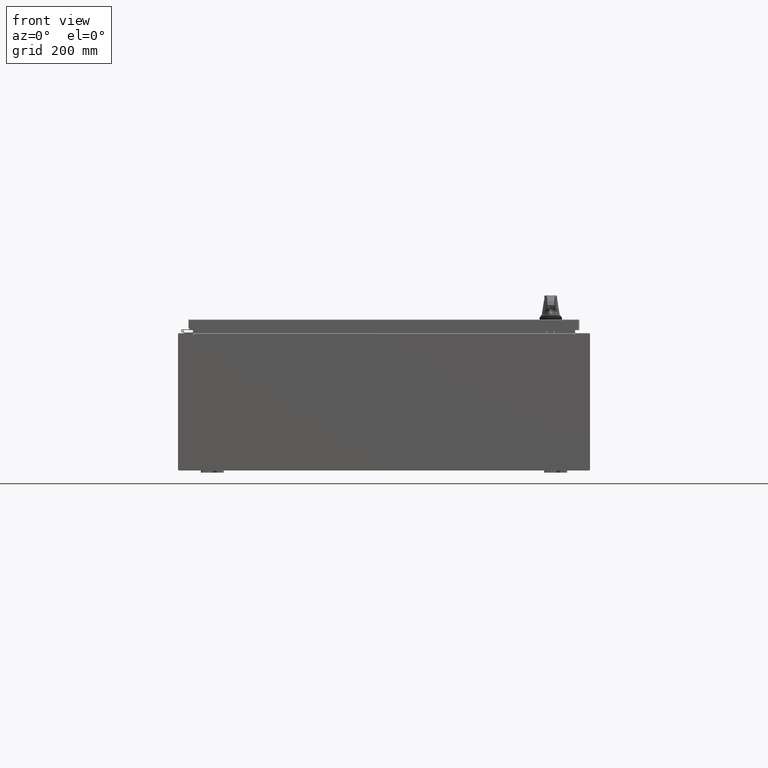
[diagram: clean part render]
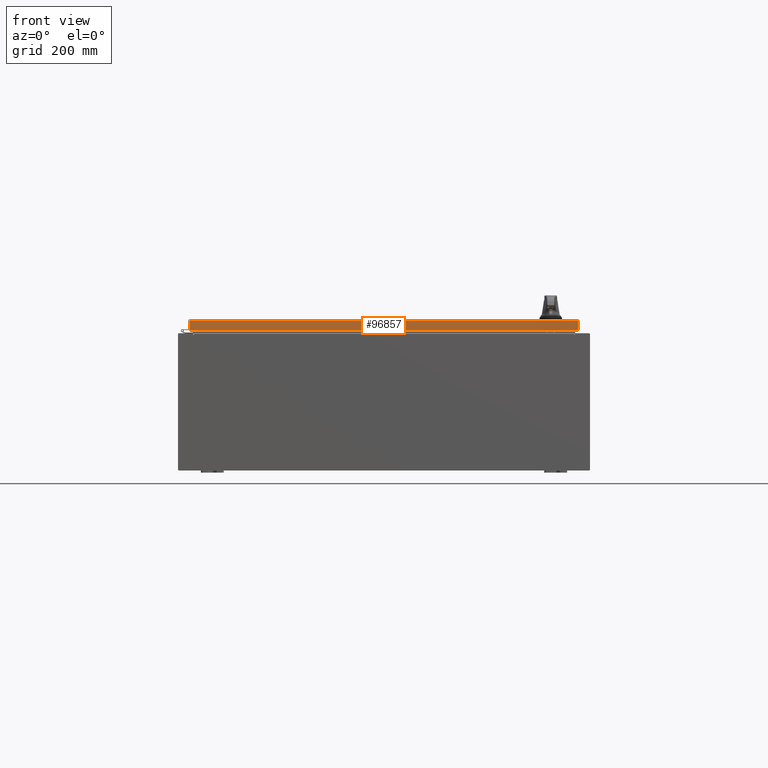
[diagram: same view with one face highlighted and labeled with its STEP entity id]
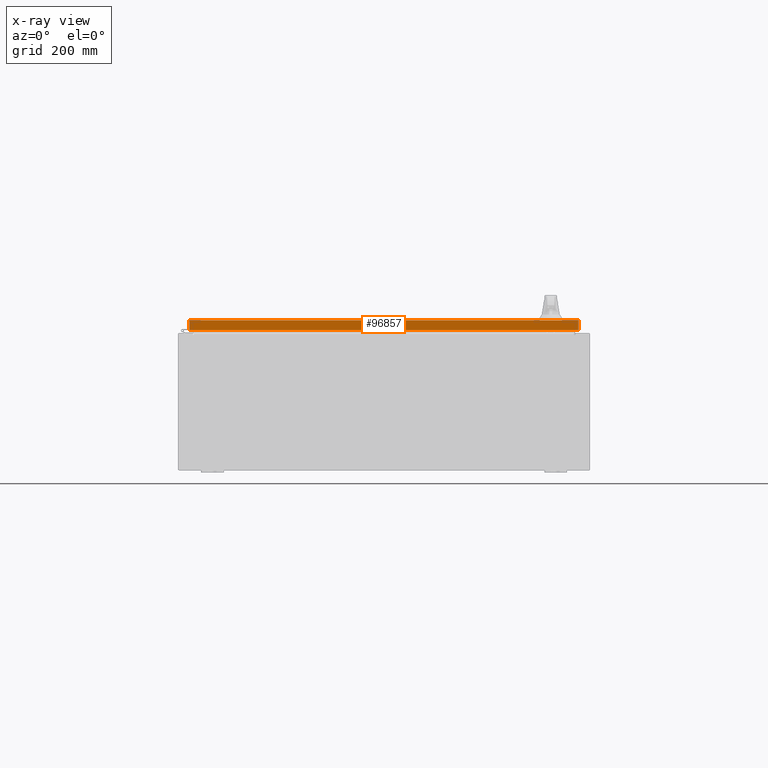
[diagram: x-ray of the same camera — body ghosted, the highlighted face saturated]
A machine part, front view. The second image highlights one B-rep face of the part: STEP entity #96857.
The next image is the same camera in x-ray: the body ghosted, the highlighted face saturated — about 0% of this face is hidden behind the body in this view.
In plain terms, the highlighted planar face has unit normal (-0, 1, -0).
Its self-contained STEP definition (entity closure, byte-faithful):
#828 = VERTEX_POINT ( 'NONE', #127365 ) ;
#2192 = EDGE_LOOP ( 'NONE', ( #16240, #85948, #10353, #128930 ) ) ;
#4402 = CARTESIAN_POINT ( 'NONE',  ( -16.98915786437627100, -23.09400000000000100, 1.172282251335225800E-013 ) ) ;
#7086 = VERTEX_POINT ( 'NONE', #16461 ) ;
#10353 = ORIENTED_EDGE ( 'NONE', *, *, #40343, .F. ) ;
#14274 = PLANE ( 'NONE',  #25025 ) ;
#14443 = LINE ( 'NONE', #28795, #89773 ) ;
#16240 = ORIENTED_EDGE ( 'NONE', *, *, #30931, .F. ) ;
#16461 = CARTESIAN_POINT ( 'NONE',  ( -16.98915786437626700, -23.09400000000000100, -0.08769999999999550400 ) ) ;
#19935 = VECTOR ( 'NONE', #76080, 39.37007874015748100 ) ;
#21286 = LINE ( 'NONE', #41218, #72548 ) ;
#24407 = VERTEX_POINT ( 'NONE', #85096 ) ;
#25025 = AXIS2_PLACEMENT_3D ( 'NONE', #85944, #96267, #34920 ) ;
#26655 = DIRECTION ( 'NONE',  ( -0.0000000000000000000, -5.064839849203732200E-015, -1.000000000000000000 ) ) ;
#28795 = CARTESIAN_POINT ( 'NONE',  ( 17.07799999999999900, -23.09400000000000100, -0.08769999999999550400 ) ) ;
#30931 = EDGE_CURVE ( 'NONE', #7086, #24407, #14443, .T. ) ;
#34920 = DIRECTION ( 'NONE',  ( 0.0000000000000000000, 5.064839849203732200E-015, 1.000000000000000000 ) ) ;
#40343 = EDGE_CURVE ( 'NONE', #828, #99780, #21286, .T. ) ;
#41218 = CARTESIAN_POINT ( 'NONE',  ( 17.07799999999999900, -23.09400000000000500, -0.9376999999999997600 ) ) ;
#47148 = LINE ( 'NONE', #4402, #19935 ) ;
#69979 = DIRECTION ( 'NONE',  ( 1.000000000000000000, 6.481495528880677800E-031, -3.349804276043092000E-045 ) ) ;
#72548 = VECTOR ( 'NONE', #82009, 39.37007874015748100 ) ;
#75709 = LINE ( 'NONE', #107704, #99757 ) ;
#76080 = DIRECTION ( 'NONE',  ( 0.0000000000000000000, -5.064839849203732200E-015, -1.000000000000000000 ) ) ;
#82009 = DIRECTION ( 'NONE',  ( -1.000000000000000000, 8.758115402030108600E-047, 1.279703943630056800E-016 ) ) ;
#85096 = CARTESIAN_POINT ( 'NONE',  ( 16.98915786437626700, -23.09400000000000100, -0.08769999999999550400 ) ) ;
#85944 = CARTESIAN_POINT ( 'NONE',  ( 1.496836577439703600E-029, -23.09400000000000100, 1.172282251335225800E-013 ) ) ;
#85948 = ORIENTED_EDGE ( 'NONE', *, *, #127425, .T. ) ;
#89773 = VECTOR ( 'NONE', #69979, 39.37007874015748100 ) ;
#90449 = CARTESIAN_POINT ( 'NONE',  ( -16.98915786437626700, -23.09400000000000500, -0.9376999999999954300 ) ) ;
#96267 = DIRECTION ( 'NONE',  ( -6.481495528880676900E-031, 1.000000000000000000, -5.064839849203732200E-015 ) ) ;
#96857 = ADVANCED_FACE ( 'NONE', ( #129006 ), #14274, .F. ) ;
#99757 = VECTOR ( 'NONE', #26655, 39.37007874015748100 ) ;
#99780 = VERTEX_POINT ( 'NONE', #90449 ) ;
#107704 = CARTESIAN_POINT ( 'NONE',  ( 16.98915786437626700, -23.09400000000000100, -0.07469999999999962800 ) ) ;
#127365 = CARTESIAN_POINT ( 'NONE',  ( 16.98915786437626700, -23.09400000000000500, -0.9376999999999997600 ) ) ;
#127425 = EDGE_CURVE ( 'NONE', #7086, #99780, #47148, .T. ) ;
#128930 = ORIENTED_EDGE ( 'NONE', *, *, #129411, .F. ) ;
#129006 = FACE_OUTER_BOUND ( 'NONE', #2192, .T. ) ;
#129411 = EDGE_CURVE ( 'NONE', #24407, #828, #75709, .T. ) ;